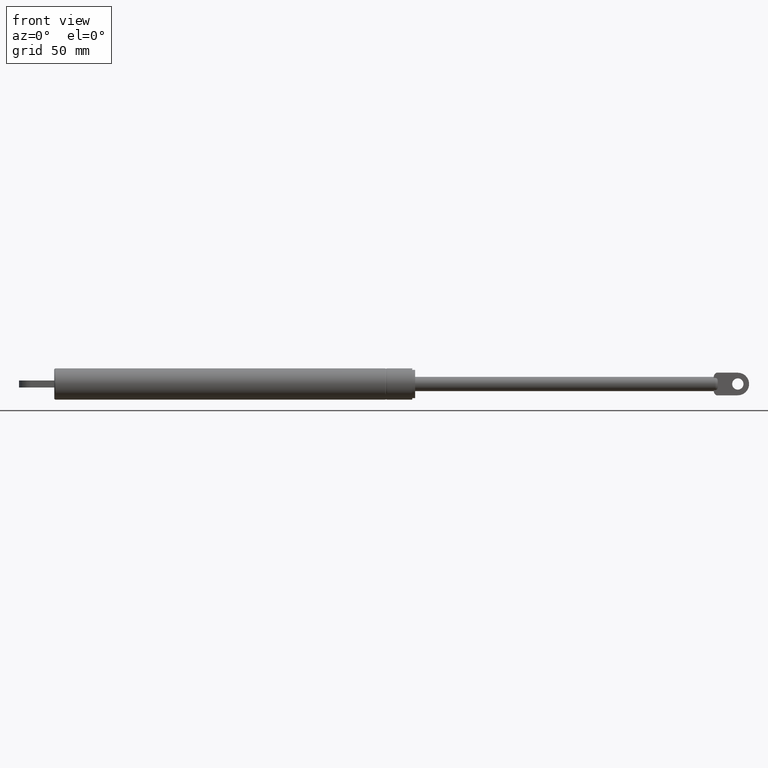
[diagram: clean part render]
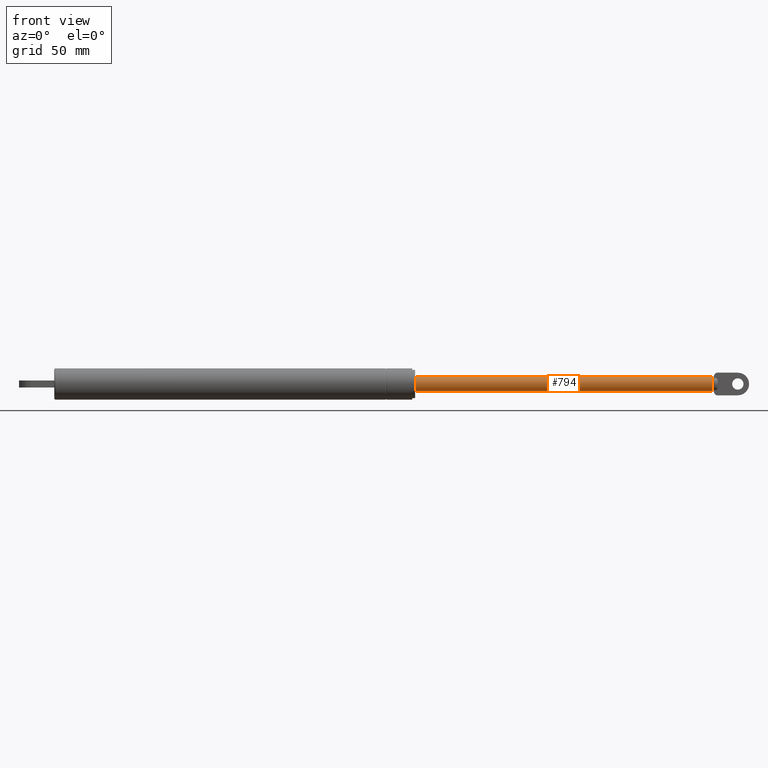
[diagram: same view with one face highlighted and labeled with its STEP entity id]
A machine part, front view. The second image highlights one B-rep face of the part: STEP entity #794.
In plain terms, the highlighted cylindrical surface (bore or boss wall) has radius 5 mm, axis along (-1, -0, -0).
Its self-contained STEP definition (entity closure, byte-faithful):
#158=CYLINDRICAL_SURFACE('',#892,5.);
#189=FACE_BOUND('',#309,.T.);
#230=FACE_OUTER_BOUND('',#308,.T.);
#308=EDGE_LOOP('',(#664));
#309=EDGE_LOOP('',(#665));
#361=CIRCLE('',#876,5.);
#371=CIRCLE('',#893,5.);
#423=VERTEX_POINT('',#1305);
#439=VERTEX_POINT('',#1362);
#500=EDGE_CURVE('',#423,#423,#361,.T.);
#523=EDGE_CURVE('',#439,#439,#371,.T.);
#664=ORIENTED_EDGE('',*,*,#523,.F.);
#665=ORIENTED_EDGE('',*,*,#500,.T.);
#794=ADVANCED_FACE('',(#230,#189),#158,.T.);
#876=AXIS2_PLACEMENT_3D('',#1306,#1063,#1064);
#892=AXIS2_PLACEMENT_3D('',#1361,#1105,#1106);
#893=AXIS2_PLACEMENT_3D('',#1363,#1107,#1108);
#1063=DIRECTION('center_axis',(-1.,0.,0.));
#1064=DIRECTION('ref_axis',(0.,0.,1.));
#1105=DIRECTION('center_axis',(-1.,0.,0.));
#1106=DIRECTION('ref_axis',(0.,0.,1.));
#1107=DIRECTION('center_axis',(-1.,0.,0.));
#1108=DIRECTION('ref_axis',(0.,0.,1.));
#1305=CARTESIAN_POINT('',(-0.999999999999996,-6.12323399573677E-16,-5.));
#1306=CARTESIAN_POINT('Origin',(-0.999999999999996,0.,0.));
#1361=CARTESIAN_POINT('Origin',(-105.5,0.,0.));
#1362=CARTESIAN_POINT('',(-211.,0.,5.));
#1363=CARTESIAN_POINT('Origin',(-211.,0.,0.));